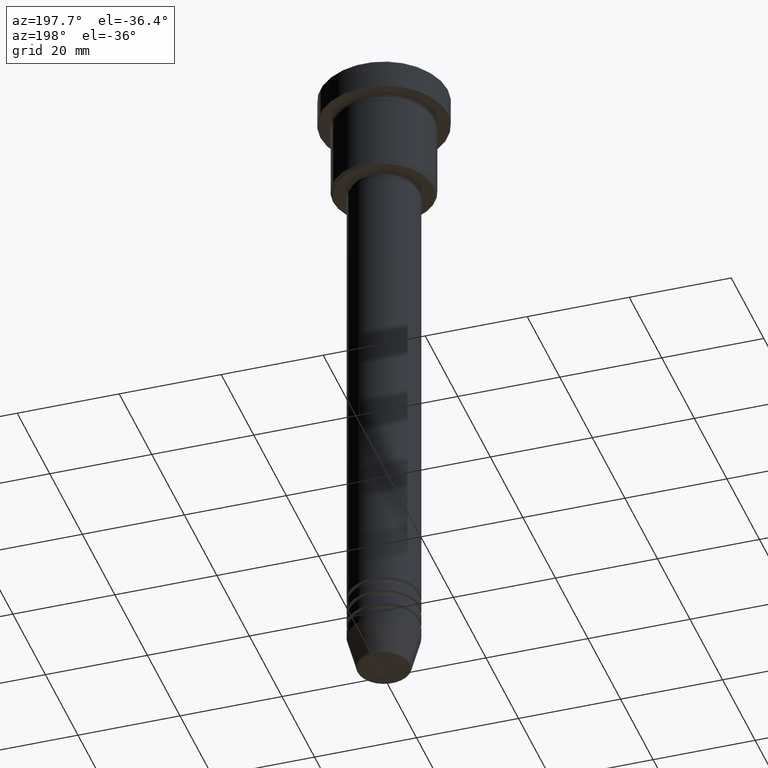
[diagram: clean part render]
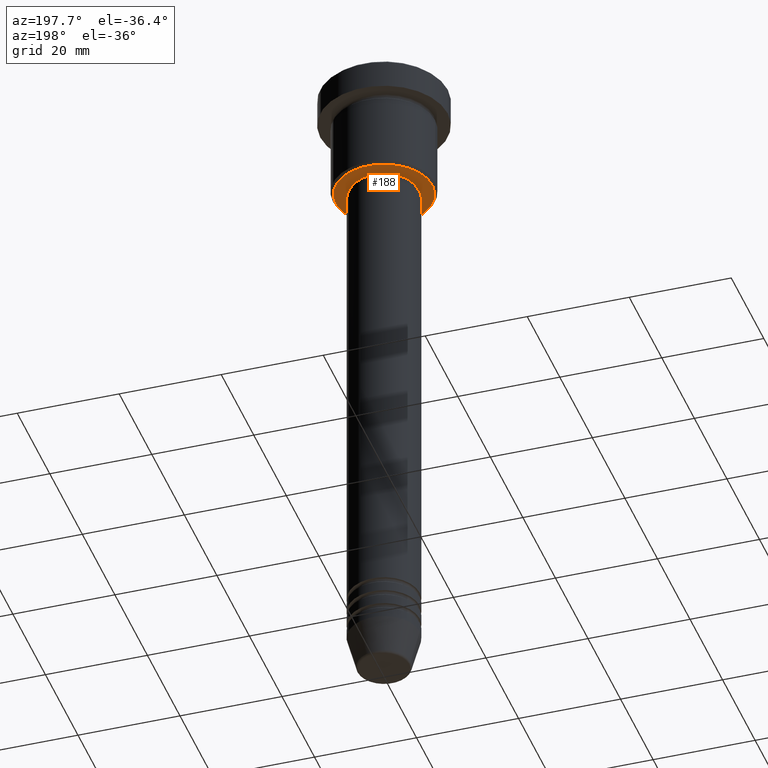
[diagram: same view with one face highlighted and labeled with its STEP entity id]
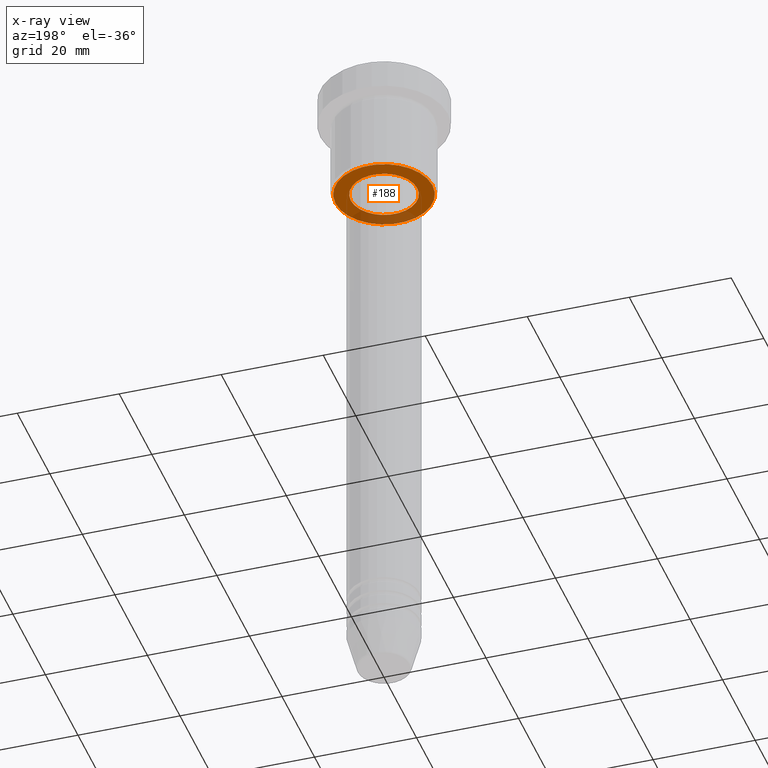
[diagram: x-ray of the same camera — body ghosted, the highlighted face saturated]
A machine part, auxiliary view. The second image highlights one B-rep face of the part: STEP entity #188.
The next image is the same camera in x-ray: the body ghosted, the highlighted face saturated — about 22% of this face is hidden behind the body in this view.
In plain terms, the highlighted planar face has unit normal (0, 0, -1).
Its self-contained STEP definition (entity closure, byte-faithful):
#3 = VERTEX_POINT ( 'NONE', #934 ) ;
#55 = CARTESIAN_POINT ( 'NONE',  ( -6.500000000000000000, 7.960204194457795477E-16, -21.99999999999999645 ) ) ;
#74 = AXIS2_PLACEMENT_3D ( 'NONE', #454, #196, #285 ) ;
#180 = DIRECTION ( 'NONE',  ( 0.000000000000000000, 0.000000000000000000, -1.000000000000000000 ) ) ;
#182 = CIRCLE ( 'NONE', #74, 6.500000000000000000 ) ;
#186 = EDGE_LOOP ( 'NONE', ( #898, #697 ) ) ;
#188 = ADVANCED_FACE ( 'NONE', ( #932, #190 ), #1010, .T. ) ;
#190 = FACE_BOUND ( 'NONE', #893, .T. ) ;
#196 = DIRECTION ( 'NONE',  ( -0.000000000000000000, -0.000000000000000000, 1.000000000000000000 ) ) ;
#260 = VERTEX_POINT ( 'NONE', #868 ) ;
#285 = DIRECTION ( 'NONE',  ( 1.000000000000000000, 0.000000000000000000, 0.000000000000000000 ) ) ;
#293 = DIRECTION ( 'NONE',  ( 0.000000000000000000, 0.000000000000000000, -1.000000000000000000 ) ) ;
#362 = EDGE_CURVE ( 'NONE', #451, #3, #182, .T. ) ;
#420 = CARTESIAN_POINT ( 'NONE',  ( 0.000000000000000000, 0.000000000000000000, -21.99999999999999645 ) ) ;
#430 = AXIS2_PLACEMENT_3D ( 'NONE', #420, #1129, #790 ) ;
#441 = CARTESIAN_POINT ( 'NONE',  ( 0.000000000000000000, 0.000000000000000000, -21.99999999999999645 ) ) ;
#451 = VERTEX_POINT ( 'NONE', #55 ) ;
#454 = CARTESIAN_POINT ( 'NONE',  ( 0.000000000000000000, 0.000000000000000000, -21.99999999999999645 ) ) ;
#513 = CARTESIAN_POINT ( 'NONE',  ( 9.500000000000008882, 0.000000000000000000, -21.99999999999999645 ) ) ;
#532 = DIRECTION ( 'NONE',  ( -1.000000000000000000, 0.000000000000000000, 0.000000000000000000 ) ) ;
#534 = EDGE_CURVE ( 'NONE', #3, #451, #910, .T. ) ;
#545 = AXIS2_PLACEMENT_3D ( 'NONE', #441, #718, #532 ) ;
#571 = ORIENTED_EDGE ( 'NONE', *, *, #362, .T. ) ;
#594 = VERTEX_POINT ( 'NONE', #513 ) ;
#658 = AXIS2_PLACEMENT_3D ( 'NONE', #902, #180, #881 ) ;
#659 = DIRECTION ( 'NONE',  ( -1.000000000000000000, 0.000000000000000000, -0.000000000000000000 ) ) ;
#697 = ORIENTED_EDGE ( 'NONE', *, *, #968, .T. ) ;
#718 = DIRECTION ( 'NONE',  ( 0.000000000000000000, 0.000000000000000000, -1.000000000000000000 ) ) ;
#745 = CIRCLE ( 'NONE', #658, 9.500000000000008882 ) ;
#790 = DIRECTION ( 'NONE',  ( 1.000000000000000000, 0.000000000000000000, 0.000000000000000000 ) ) ;
#847 = CARTESIAN_POINT ( 'NONE',  ( 0.000000000000000000, 10.00000000000000000, -21.99999999999999645 ) ) ;
#868 = CARTESIAN_POINT ( 'NONE',  ( -9.500000000000008882, 1.194030629168669864E-15, -21.99999999999999645 ) ) ;
#881 = DIRECTION ( 'NONE',  ( -1.000000000000000000, 0.000000000000000000, 0.000000000000000000 ) ) ;
#893 = EDGE_LOOP ( 'NONE', ( #1104, #571 ) ) ;
#898 = ORIENTED_EDGE ( 'NONE', *, *, #1026, .T. ) ;
#902 = CARTESIAN_POINT ( 'NONE',  ( 0.000000000000000000, 0.000000000000000000, -21.99999999999999645 ) ) ;
#910 = CIRCLE ( 'NONE', #430, 6.500000000000000000 ) ;
#922 = AXIS2_PLACEMENT_3D ( 'NONE', #847, #293, #659 ) ;
#932 = FACE_OUTER_BOUND ( 'NONE', #186, .T. ) ;
#934 = CARTESIAN_POINT ( 'NONE',  ( 6.500000000000000000, 0.000000000000000000, -21.99999999999999645 ) ) ;
#968 = EDGE_CURVE ( 'NONE', #260, #594, #745, .T. ) ;
#1010 = PLANE ( 'NONE',  #922 ) ;
#1026 = EDGE_CURVE ( 'NONE', #594, #260, #1101, .T. ) ;
#1101 = CIRCLE ( 'NONE', #545, 9.500000000000008882 ) ;
#1104 = ORIENTED_EDGE ( 'NONE', *, *, #534, .T. ) ;
#1129 = DIRECTION ( 'NONE',  ( -0.000000000000000000, -0.000000000000000000, 1.000000000000000000 ) ) ;